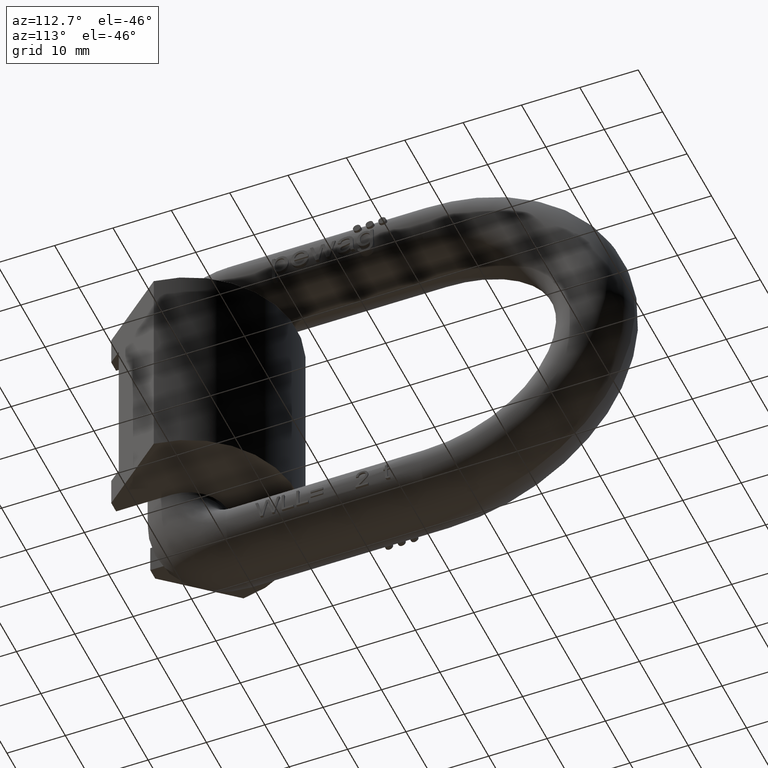
[diagram: clean part render]
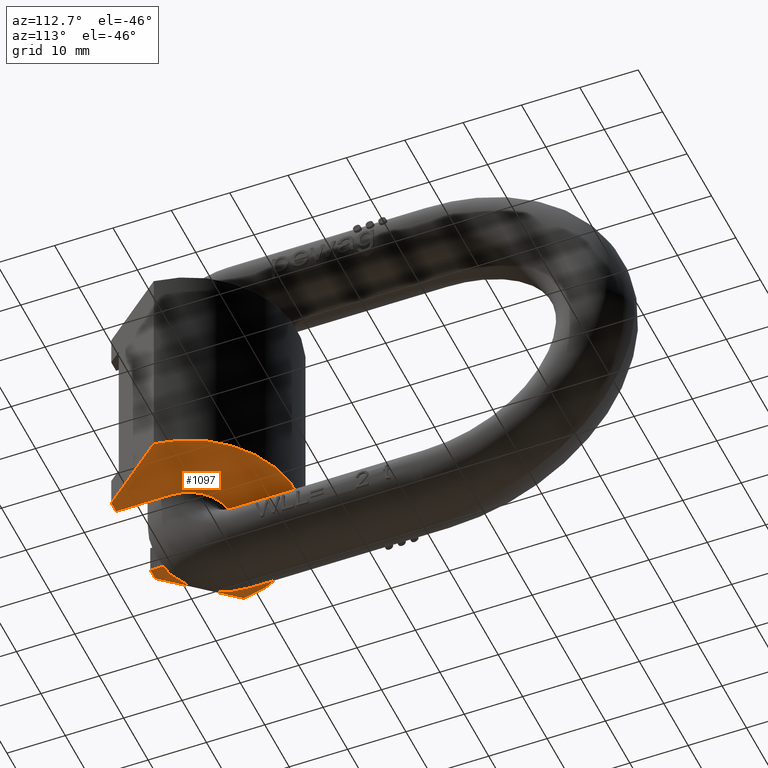
[diagram: same view with one face highlighted and labeled with its STEP entity id]
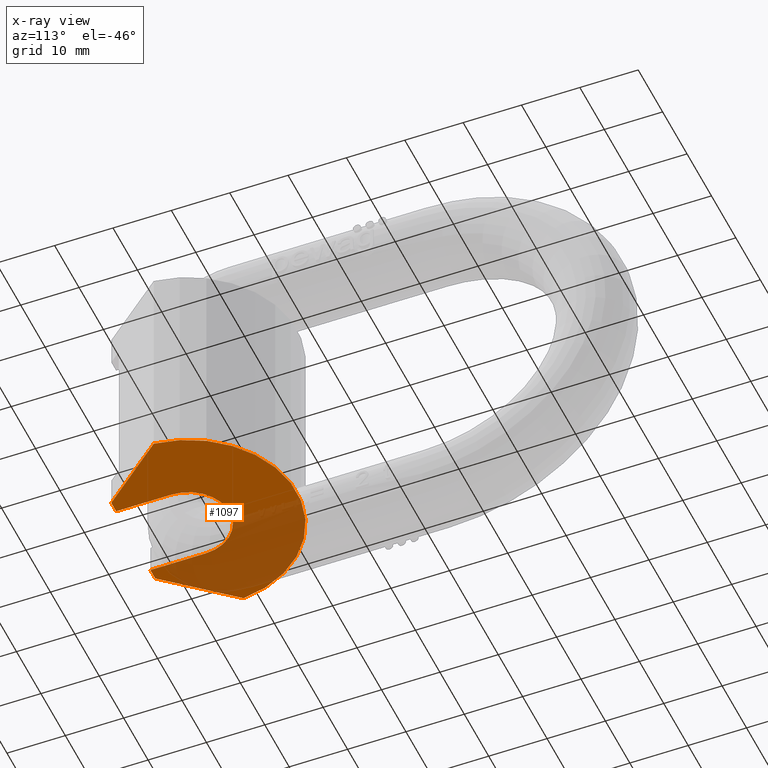
[diagram: x-ray of the same camera — body ghosted, the highlighted face saturated]
A machine part, auxiliary view. The second image highlights one B-rep face of the part: STEP entity #1097.
The next image is the same camera in x-ray: the body ghosted, the highlighted face saturated — about 43% of this face is hidden behind the body in this view.
In plain terms, the highlighted planar face has unit normal (0, 0, -1).
Its self-contained STEP definition (entity closure, byte-faithful):
#904=PLANE('',#6727);
#1097=ADVANCED_FACE('',(#1478),#904,.T.);
#1478=FACE_OUTER_BOUND('',#1820,.T.);
#1820=EDGE_LOOP('',(#2298,#2299,#2300,#2301,#2302,#2303,#2304,#2305));
#2231=CIRCLE('',#6722,18.5);
#2233=CIRCLE('',#6726,7.);
#2298=ORIENTED_EDGE('',*,*,#4831,.F.);
#2299=ORIENTED_EDGE('',*,*,#4832,.T.);
#2300=ORIENTED_EDGE('',*,*,#4823,.F.);
#2301=ORIENTED_EDGE('',*,*,#4833,.T.);
#2302=ORIENTED_EDGE('',*,*,#4834,.F.);
#2303=ORIENTED_EDGE('',*,*,#4835,.F.);
#2304=ORIENTED_EDGE('',*,*,#4836,.F.);
#2305=ORIENTED_EDGE('',*,*,#4837,.F.);
#4183=VERTEX_POINT('',#8212);
#4185=VERTEX_POINT('',#8216);
#4192=VERTEX_POINT('',#8234);
#4193=VERTEX_POINT('',#8235);
#4194=VERTEX_POINT('',#8238);
#4195=VERTEX_POINT('',#8240);
#4196=VERTEX_POINT('',#8242);
#4197=VERTEX_POINT('',#8244);
#4823=EDGE_CURVE('',#4185,#4183,#2231,.T.);
#4831=EDGE_CURVE('',#4192,#4193,#5776,.T.);
#4832=EDGE_CURVE('',#4192,#4183,#5777,.T.);
#4833=EDGE_CURVE('',#4185,#4194,#5778,.T.);
#4834=EDGE_CURVE('',#4195,#4194,#5779,.T.);
#4835=EDGE_CURVE('',#4196,#4195,#5780,.T.);
#4836=EDGE_CURVE('',#4197,#4196,#2233,.T.);
#4837=EDGE_CURVE('',#4193,#4197,#5781,.T.);
#5776=LINE('',#8233,#6178);
#5777=LINE('',#8236,#6179);
#5778=LINE('',#8237,#6180);
#5779=LINE('',#8239,#6181);
#5780=LINE('',#8241,#6182);
#5781=LINE('',#8245,#6183);
#6178=VECTOR('',#7053,1.);
#6179=VECTOR('',#7054,1.);
#6180=VECTOR('',#7055,1.);
#6181=VECTOR('',#7056,1.);
#6182=VECTOR('',#7057,1.);
#6183=VECTOR('',#7060,1.);
#6722=AXIS2_PLACEMENT_3D('',#8217,#7039,#7040);
#6726=AXIS2_PLACEMENT_3D('',#8243,#7058,#7059);
#6727=AXIS2_PLACEMENT_3D('',#8246,#7061,#7062);
#7039=DIRECTION('',(0.,0.,1.));
#7040=DIRECTION('',(1.,0.,0.));
#7053=DIRECTION('',(1.,3.42983002270005E-32,0.));
#7054=DIRECTION('',(-0.642787609686539,0.766044443118978,0.));
#7055=DIRECTION('',(-0.642787609686539,-0.766044443118978,0.));
#7056=DIRECTION('',(1.,-3.42983002270005E-32,0.));
#7057=DIRECTION('',(9.13012355777267E-17,-1.,0.));
#7058=DIRECTION('',(0.,0.,-1.));
#7059=DIRECTION('',(1.,0.,0.));
#7060=DIRECTION('',(9.13012355777267E-17,1.,0.));
#7061=DIRECTION('',(0.,0.,-1.));
#7062=DIRECTION('',(-1.,0.,0.));
#8212=CARTESIAN_POINT('',(-18.4193510447237,11.2255454474555,-18.5));
#8216=CARTESIAN_POINT('',(18.4193510447237,11.2255454474555,-18.5));
#8217=CARTESIAN_POINT('',(0.,9.5,-18.5));
#8233=CARTESIAN_POINT('',(-18.5,-3.94430452610506E-31,-18.5));
#8234=CARTESIAN_POINT('',(-9.,-8.88178419700125E-16,-18.5));
#8235=CARTESIAN_POINT('',(-7.,0.,-18.5));
#8236=CARTESIAN_POINT('',(-9.95925362630917,1.14319395536298,-18.5));
#8237=CARTESIAN_POINT('',(9.95925362630917,1.14319395536298,-18.5));
#8238=CARTESIAN_POINT('',(9.,-8.88178419700125E-16,-18.5));
#8239=CARTESIAN_POINT('',(7.,0.,-18.5));
#8240=CARTESIAN_POINT('',(7.,0.,-18.5));
#8241=CARTESIAN_POINT('',(7.,9.5,-18.5));
#8242=CARTESIAN_POINT('',(7.,9.5,-18.5));
#8243=CARTESIAN_POINT('',(0.,9.5,-18.5));
#8244=CARTESIAN_POINT('',(-7.,9.5,-18.5));
#8245=CARTESIAN_POINT('',(-7.,0.,-18.5));
#8246=CARTESIAN_POINT('',(0.,9.5,-18.5));